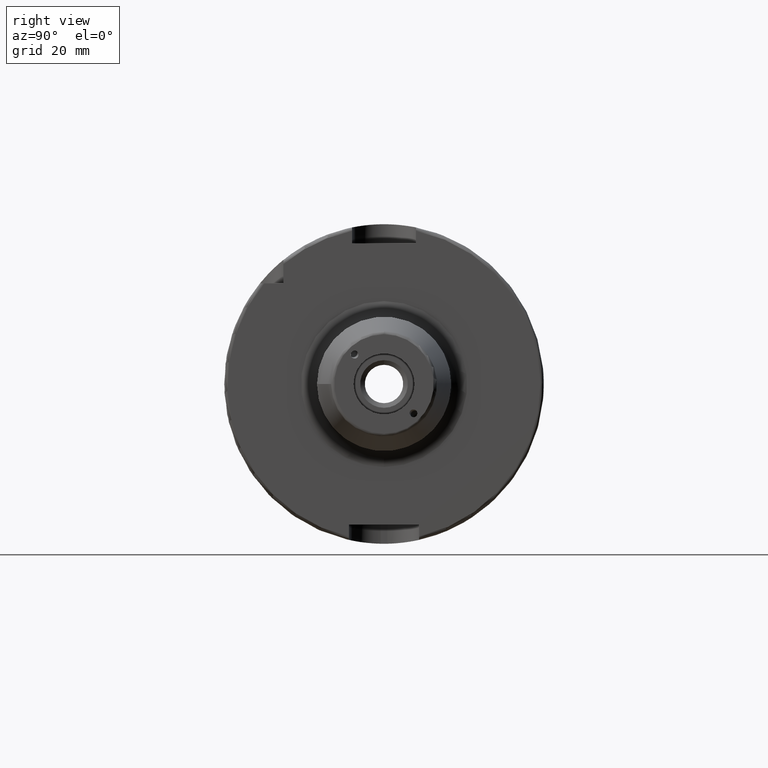
[diagram: clean part render]
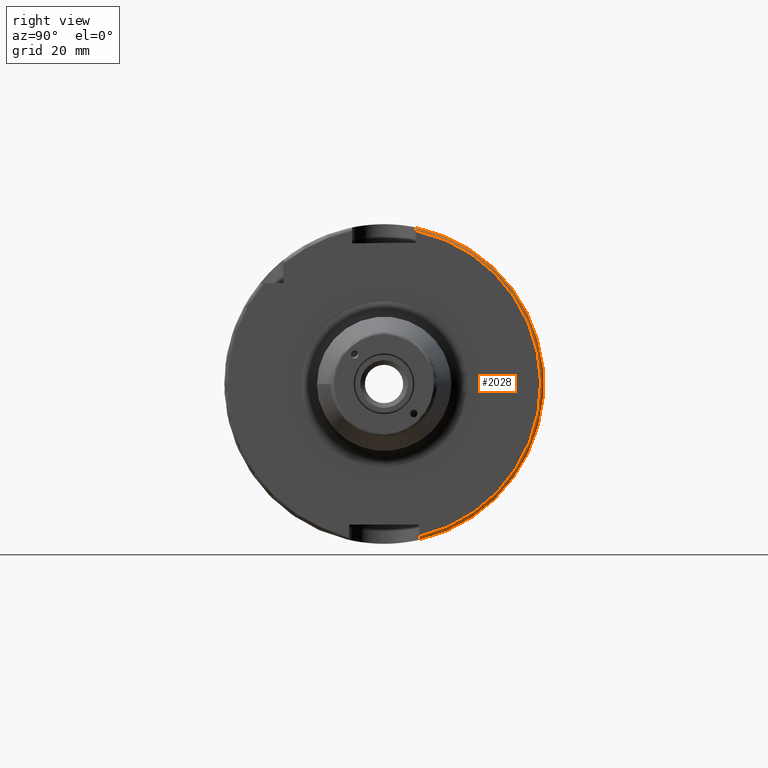
[diagram: same view with one face highlighted and labeled with its STEP entity id]
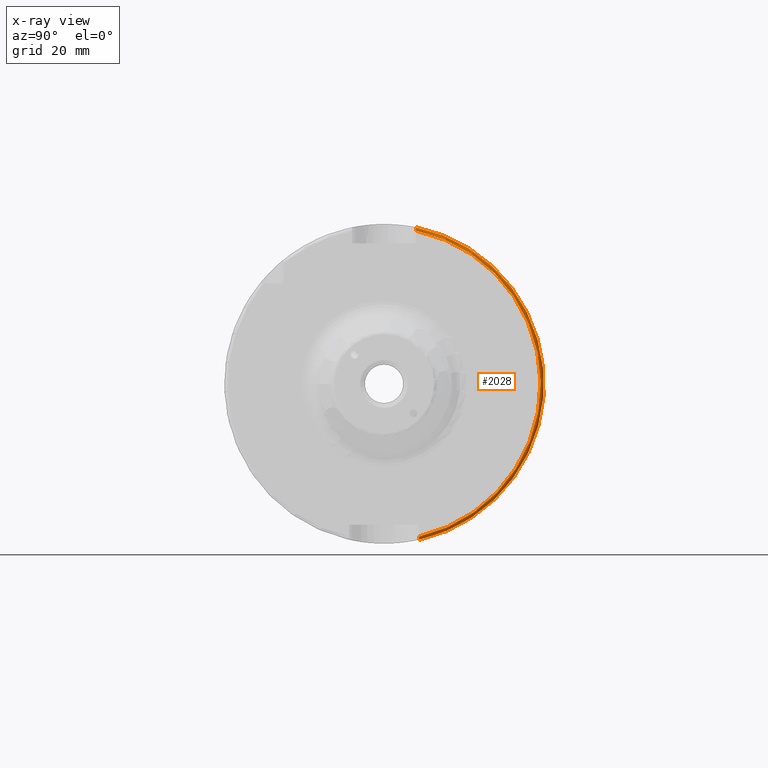
[diagram: x-ray of the same camera — body ghosted, the highlighted face saturated]
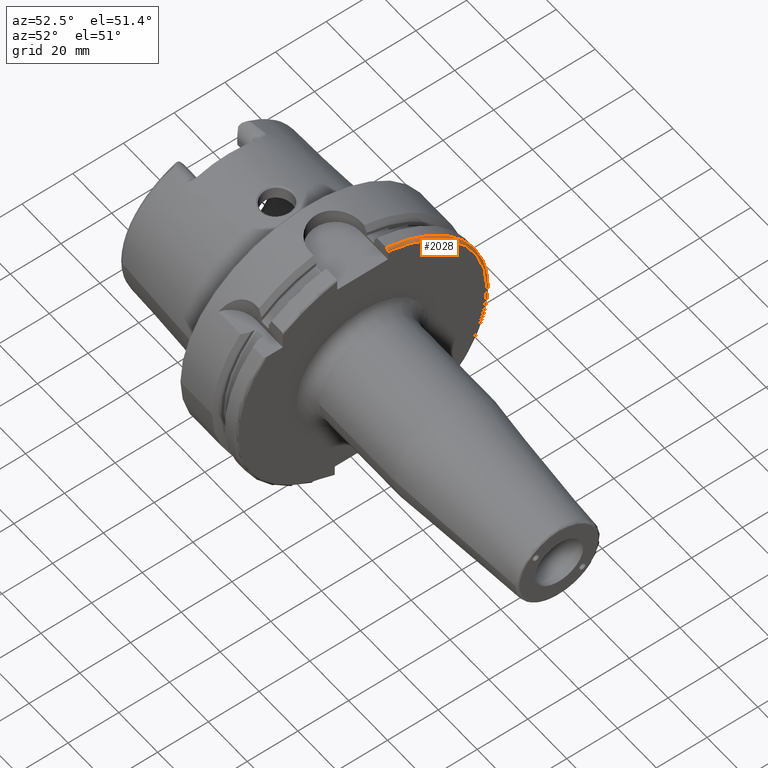
[diagram: same view with one face highlighted and labeled with its STEP entity id]
A machine part, right view. The second image highlights one B-rep face of the part: STEP entity #2028.
The next image is the same camera in x-ray: the body ghosted, the highlighted face saturated — about 0% of this face is hidden behind the body in this view.
A second angle (auxiliary view) of the same face is appended — the face is thin or edge-on in the first view.
In plain terms, the highlighted toroidal blend (fillet) surface has major radius 49 mm and minor (blend) radius 1 mm.
Its self-contained STEP definition (entity closure, byte-faithful):
#71=B_SPLINE_CURVE_WITH_KNOTS('',3,(#4119,#4120,#4121,#4122,#4123,#4124,
#4125,#4126,#4127,#4128),.UNSPECIFIED.,.F.,.F.,(4,2,2,2,4),(-0.150007250748607,
-0.111709319934006,-0.073924584474287,-0.0367272650241834,0.),
 .UNSPECIFIED.);
#77=B_SPLINE_CURVE_WITH_KNOTS('',3,(#4235,#4236,#4237,#4238,#4239,#4240,
#4241,#4242,#4243,#4244),.UNSPECIFIED.,.F.,.F.,(4,2,2,2,4),(0.,0.0367798178285196,
0.0739463090088053,0.111595049686659,0.149664155971102),.UNSPECIFIED.);
#143=TOROIDAL_SURFACE('',#2248,49.,1.);
#266=FACE_OUTER_BOUND('',#394,.T.);
#394=EDGE_LOOP('',(#1665,#1666,#1667,#1668));
#686=CIRCLE('',#2137,49.);
#743=CIRCLE('',#2249,50.);
#822=VERTEX_POINT('',#3046);
#823=VERTEX_POINT('',#3048);
#946=VERTEX_POINT('',#4118);
#966=VERTEX_POINT('',#4233);
#1033=EDGE_CURVE('',#822,#823,#686,.T.);
#1199=EDGE_CURVE('',#822,#946,#71,.T.);
#1226=EDGE_CURVE('',#946,#966,#743,.T.);
#1227=EDGE_CURVE('',#966,#823,#77,.T.);
#1665=ORIENTED_EDGE('',*,*,#1199,.T.);
#1666=ORIENTED_EDGE('',*,*,#1226,.T.);
#1667=ORIENTED_EDGE('',*,*,#1227,.T.);
#1668=ORIENTED_EDGE('',*,*,#1033,.F.);
#2028=ADVANCED_FACE('',(#266),#143,.T.);
#2137=AXIS2_PLACEMENT_3D('',#3049,#2431,#2432);
#2248=AXIS2_PLACEMENT_3D('',#4232,#2723,#2724);
#2249=AXIS2_PLACEMENT_3D('',#4234,#2725,#2726);
#2431=DIRECTION('center_axis',(1.,0.,0.));
#2432=DIRECTION('ref_axis',(0.,0.,-1.));
#2723=DIRECTION('center_axis',(1.,0.,0.));
#2724=DIRECTION('ref_axis',(0.,0.,-1.));
#2725=DIRECTION('center_axis',(1.,0.,0.));
#2726=DIRECTION('ref_axis',(0.,0.,-1.));
#3046=CARTESIAN_POINT('',(29.,11.,-47.7493455452533));
#3048=CARTESIAN_POINT('',(29.,10.,47.9687398208458));
#3049=CARTESIAN_POINT('Origin',(29.,0.,0.));
#4118=CARTESIAN_POINT('',(28.,11.,-48.7749935930288));
#4119=CARTESIAN_POINT('Ctrl Pts',(29.,11.,-47.7493455452533));
#4120=CARTESIAN_POINT('Ctrl Pts',(29.,11.,-47.8770053146353));
#4121=CARTESIAN_POINT('Ctrl Pts',(28.9706639476237,11.,-48.0273618911654));
#4122=CARTESIAN_POINT('Ctrl Pts',(28.8748308300651,11.,-48.2621670900838));
#4123=CARTESIAN_POINT('Ctrl Pts',(28.7919641478885,11.,-48.3885636593617));
#4124=CARTESIAN_POINT('Ctrl Pts',(28.6165742030546,11.,-48.5666323605576));
#4125=CARTESIAN_POINT('Ctrl Pts',(28.4935811491945,11.,-48.6503638235243));
#4126=CARTESIAN_POINT('Ctrl Pts',(28.2664089378791,11.,-48.7458273107991));
#4127=CARTESIAN_POINT('Ctrl Pts',(28.1224242167473,11.,-48.7749935930288));
#4128=CARTESIAN_POINT('Ctrl Pts',(28.,11.,-48.7749935930288));
#4232=CARTESIAN_POINT('Origin',(28.,0.,0.));
#4233=CARTESIAN_POINT('',(28.,10.,48.9897948556636));
#4234=CARTESIAN_POINT('Origin',(28.,0.,0.));
#4235=CARTESIAN_POINT('Ctrl Pts',(28.,10.,48.9897948556636));
#4236=CARTESIAN_POINT('Ctrl Pts',(28.1225993927617,10.,48.9897948556636));
#4237=CARTESIAN_POINT('Ctrl Pts',(28.2668083802627,10.,48.9606770275179));
#4238=CARTESIAN_POINT('Ctrl Pts',(28.4941340959036,10.,48.8653921723158));
#4239=CARTESIAN_POINT('Ctrl Pts',(28.6171537831048,10.,48.7819192687639));
#4240=CARTESIAN_POINT('Ctrl Pts',(28.7923918657708,10.,48.6044818239964));
#4241=CARTESIAN_POINT('Ctrl Pts',(28.8751547043338,10.,48.4786678528046));
#4242=CARTESIAN_POINT('Ctrl Pts',(28.9707427935162,10.,48.245076212515));
#4243=CARTESIAN_POINT('Ctrl Pts',(29.,10.,48.095636841794));
#4244=CARTESIAN_POINT('Ctrl Pts',(29.,10.,47.9687398208458));